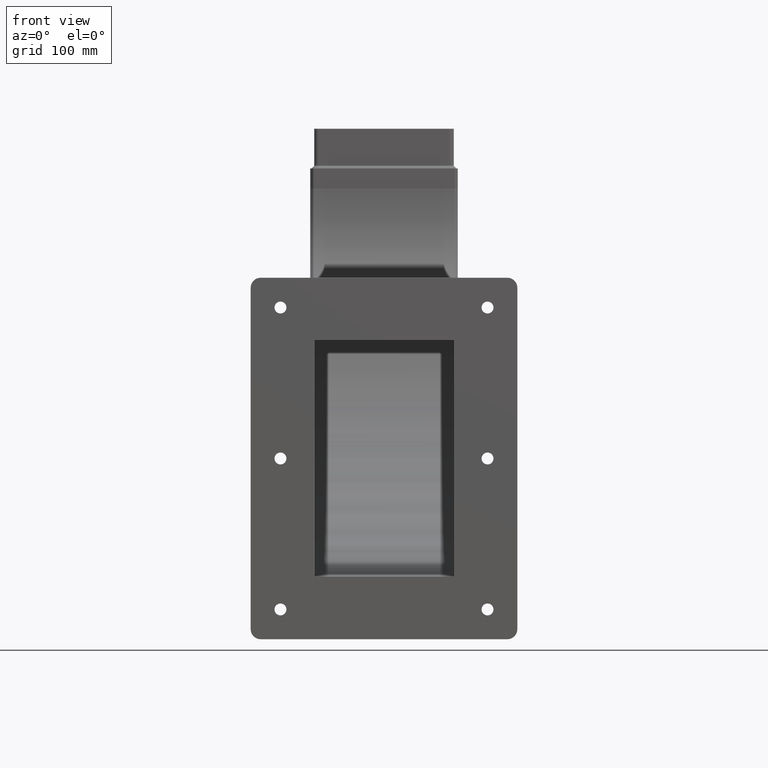
[diagram: clean part render]
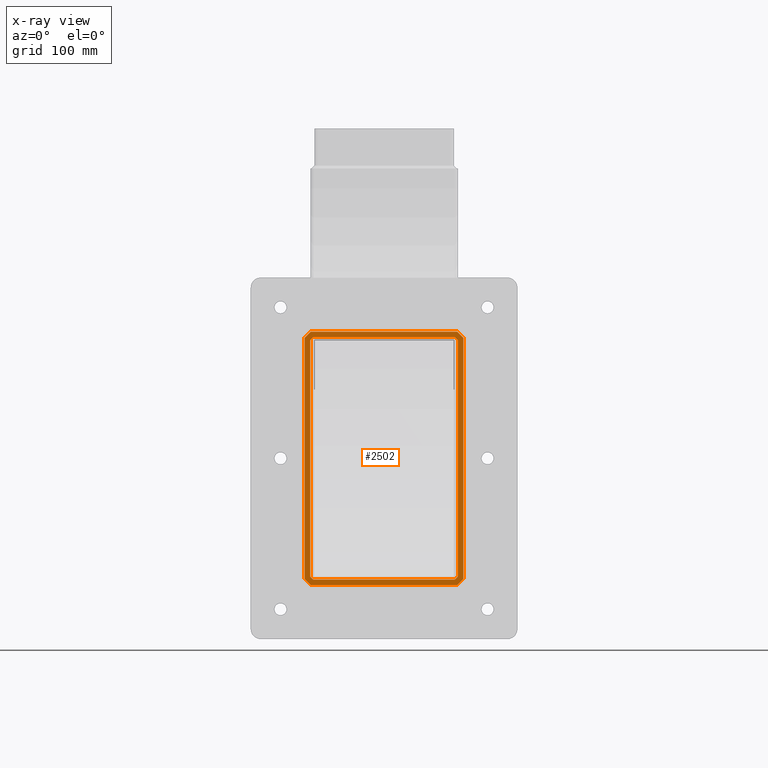
[diagram: x-ray — body ghosted, one internal face saturated and labeled with its STEP entity id]
A machine part, front view, then the same camera in x-ray: the body is ghosted and one INTERNAL B-rep face — a face not visible from any outside direction — is saturated and labeled: STEP entity #2502.
In plain terms, the highlighted planar face has unit normal (0, 1, 0).
Its self-contained STEP definition (entity closure, byte-faithful):
#100=FACE_BOUND('',#292,.T.);
#140=FACE_OUTER_BOUND('',#291,.T.);
#291=EDGE_LOOP('',(#1773,#1774,#1775,#1776,#1777,#1778,#1779,#1780));
#292=EDGE_LOOP('',(#1781,#1782,#1783,#1784,#1785,#1786,#1787,#1788));
#551=LINE('',#3868,#837);
#555=LINE('',#3877,#841);
#559=LINE('',#3886,#845);
#563=LINE('',#3895,#849);
#565=LINE('',#3900,#851);
#566=LINE('',#3902,#852);
#567=LINE('',#3904,#853);
#568=LINE('',#3906,#854);
#569=LINE('',#3908,#855);
#570=LINE('',#3910,#856);
#571=LINE('',#3912,#857);
#572=LINE('',#3913,#858);
#573=LINE('',#3914,#859);
#574=LINE('',#3915,#860);
#575=LINE('',#3916,#861);
#576=LINE('',#3917,#862);
#837=VECTOR('',#3108,10.);
#841=VECTOR('',#3114,10.);
#845=VECTOR('',#3120,10.);
#849=VECTOR('',#3126,10.);
#851=VECTOR('',#3130,10.);
#852=VECTOR('',#3131,10.);
#853=VECTOR('',#3132,10.);
#854=VECTOR('',#3133,10.);
#855=VECTOR('',#3134,10.);
#856=VECTOR('',#3135,10.);
#857=VECTOR('',#3136,10.);
#858=VECTOR('',#3137,10.);
#859=VECTOR('',#3138,10.);
#860=VECTOR('',#3139,10.);
#861=VECTOR('',#3140,10.);
#862=VECTOR('',#3141,10.);
#1121=VERTEX_POINT('',#3865);
#1122=VERTEX_POINT('',#3867);
#1125=VERTEX_POINT('',#3874);
#1126=VERTEX_POINT('',#3876);
#1129=VERTEX_POINT('',#3883);
#1130=VERTEX_POINT('',#3885);
#1133=VERTEX_POINT('',#3892);
#1134=VERTEX_POINT('',#3894);
#1135=VERTEX_POINT('',#3898);
#1136=VERTEX_POINT('',#3899);
#1137=VERTEX_POINT('',#3901);
#1138=VERTEX_POINT('',#3903);
#1139=VERTEX_POINT('',#3905);
#1140=VERTEX_POINT('',#3907);
#1141=VERTEX_POINT('',#3909);
#1142=VERTEX_POINT('',#3911);
#1355=EDGE_CURVE('',#1122,#1121,#551,.T.);
#1359=EDGE_CURVE('',#1126,#1125,#555,.T.);
#1363=EDGE_CURVE('',#1130,#1129,#559,.T.);
#1367=EDGE_CURVE('',#1134,#1133,#563,.T.);
#1369=EDGE_CURVE('',#1135,#1136,#565,.T.);
#1370=EDGE_CURVE('',#1137,#1135,#566,.T.);
#1371=EDGE_CURVE('',#1138,#1137,#567,.T.);
#1372=EDGE_CURVE('',#1139,#1138,#568,.T.);
#1373=EDGE_CURVE('',#1140,#1139,#569,.T.);
#1374=EDGE_CURVE('',#1141,#1140,#570,.T.);
#1375=EDGE_CURVE('',#1142,#1141,#571,.T.);
#1376=EDGE_CURVE('',#1136,#1142,#572,.T.);
#1377=EDGE_CURVE('',#1130,#1125,#573,.T.);
#1378=EDGE_CURVE('',#1134,#1129,#574,.T.);
#1379=EDGE_CURVE('',#1122,#1133,#575,.T.);
#1380=EDGE_CURVE('',#1126,#1121,#576,.T.);
#1773=ORIENTED_EDGE('',*,*,#1369,.F.);
#1774=ORIENTED_EDGE('',*,*,#1370,.F.);
#1775=ORIENTED_EDGE('',*,*,#1371,.F.);
#1776=ORIENTED_EDGE('',*,*,#1372,.F.);
#1777=ORIENTED_EDGE('',*,*,#1373,.F.);
#1778=ORIENTED_EDGE('',*,*,#1374,.F.);
#1779=ORIENTED_EDGE('',*,*,#1375,.F.);
#1780=ORIENTED_EDGE('',*,*,#1376,.F.);
#1781=ORIENTED_EDGE('',*,*,#1377,.F.);
#1782=ORIENTED_EDGE('',*,*,#1363,.T.);
#1783=ORIENTED_EDGE('',*,*,#1378,.F.);
#1784=ORIENTED_EDGE('',*,*,#1367,.T.);
#1785=ORIENTED_EDGE('',*,*,#1379,.F.);
#1786=ORIENTED_EDGE('',*,*,#1355,.T.);
#1787=ORIENTED_EDGE('',*,*,#1380,.F.);
#1788=ORIENTED_EDGE('',*,*,#1359,.T.);
#2380=PLANE('',#2789);
#2502=ADVANCED_FACE('',(#140,#100),#2380,.F.);
#2789=AXIS2_PLACEMENT_3D('',#3897,#3128,#3129);
#3108=DIRECTION('',(-2.26554885962571E-15,0.,1.));
#3114=DIRECTION('',(1.,0.,3.82106757915583E-31));
#3120=DIRECTION('',(-2.08166817117216E-15,0.,-1.));
#3126=DIRECTION('',(-1.,0.,-4.93038065763131E-31));
#3128=DIRECTION('center_axis',(0.,1.,0.));
#3129=DIRECTION('ref_axis',(-1.,0.,0.));
#3130=DIRECTION('',(0.707106781186561,0.,-0.707106781186534));
#3131=DIRECTION('',(1.,0.,3.82106757915583E-31));
#3132=DIRECTION('',(0.707106781186517,0.,0.707106781186578));
#3133=DIRECTION('',(-2.26554885962571E-15,0.,1.));
#3134=DIRECTION('',(-0.70710678118653,0.,0.707106781186565));
#3135=DIRECTION('',(-1.,0.,-4.93038065763131E-31));
#3136=DIRECTION('',(-0.707106781186712,0.,-0.707106781186383));
#3137=DIRECTION('',(-2.08166817117216E-15,0.,-1.));
#3138=DIRECTION('',(-0.707106781186561,0.,0.707106781186534));
#3139=DIRECTION('',(0.707106781186712,0.,0.707106781186383));
#3140=DIRECTION('',(0.70710678118653,0.,-0.707106781186565));
#3141=DIRECTION('',(-0.707106781186517,0.,-0.707106781186578));
#3865=CARTESIAN_POINT('',(-74.2500000000005,6.,119.));
#3867=CARTESIAN_POINT('',(-74.2499999999999,6.,-119.));
#3868=CARTESIAN_POINT('',(-74.2500000000004,6.,48.1167584953884));
#3874=CARTESIAN_POINT('',(71.25,6.00000000000001,122.));
#3876=CARTESIAN_POINT('',(-71.25,6.,122.));
#3877=CARTESIAN_POINT('',(-1.58727977073084E-14,6.,122.));
#3883=CARTESIAN_POINT('',(74.25,6.,-119.));
#3885=CARTESIAN_POINT('',(74.2500000000005,6.,119.));
#3886=CARTESIAN_POINT('',(74.2500000000004,6.,48.1167584953884));
#3892=CARTESIAN_POINT('',(-71.25,6.,-122.));
#3894=CARTESIAN_POINT('',(71.25,6.,-122.));
#3895=CARTESIAN_POINT('',(-1.32803043529789E-14,6.,-122.));
#3897=CARTESIAN_POINT('Origin',(0.,6.,0.));
#3898=CARTESIAN_POINT('',(73.5931457505074,6.00000000000001,127.656854249492));
#3899=CARTESIAN_POINT('',(79.9068542494929,6.00000000000001,121.343145750507));
#3900=CARTESIAN_POINT('',(87.9374999999992,6.00000000000001,113.312500000001));
#3901=CARTESIAN_POINT('',(-73.5931457505076,6.,127.656854249492));
#3902=CARTESIAN_POINT('',(-1.58727977073084E-14,6.,127.656854249492));
#3903=CARTESIAN_POINT('',(-79.9068542494929,6.,121.343145750507));
#3904=CARTESIAN_POINT('',(-87.9375000000016,6.,113.312499999997));
#3905=CARTESIAN_POINT('',(-79.9068542494924,6.00000000000001,-121.343145750508));
#3906=CARTESIAN_POINT('',(-79.9068542494928,6.00000000000001,48.1167584953884));
#3907=CARTESIAN_POINT('',(-73.5931457505079,6.,-127.656854249492));
#3908=CARTESIAN_POINT('',(-87.937500000001,6.,-113.312499999998));
#3909=CARTESIAN_POINT('',(73.593145750507,6.,-127.656854249492));
#3910=CARTESIAN_POINT('',(-1.32803043529789E-14,6.,-127.656854249492));
#3911=CARTESIAN_POINT('',(79.9068542494924,6.00000000000001,-121.34314575051));
#3912=CARTESIAN_POINT('',(87.9374999999908,6.,-113.312500000015));
#3913=CARTESIAN_POINT('',(79.9068542494927,6.00000000000001,48.1167584953884));
#3914=CARTESIAN_POINT('',(83.9374999999993,6.00000000000001,109.312500000001));
#3915=CARTESIAN_POINT('',(83.9374999999917,6.,-109.312500000014));
#3916=CARTESIAN_POINT('',(-83.937500000001,6.,-109.312499999999));
#3917=CARTESIAN_POINT('',(-83.9375000000015,6.,109.312499999997));